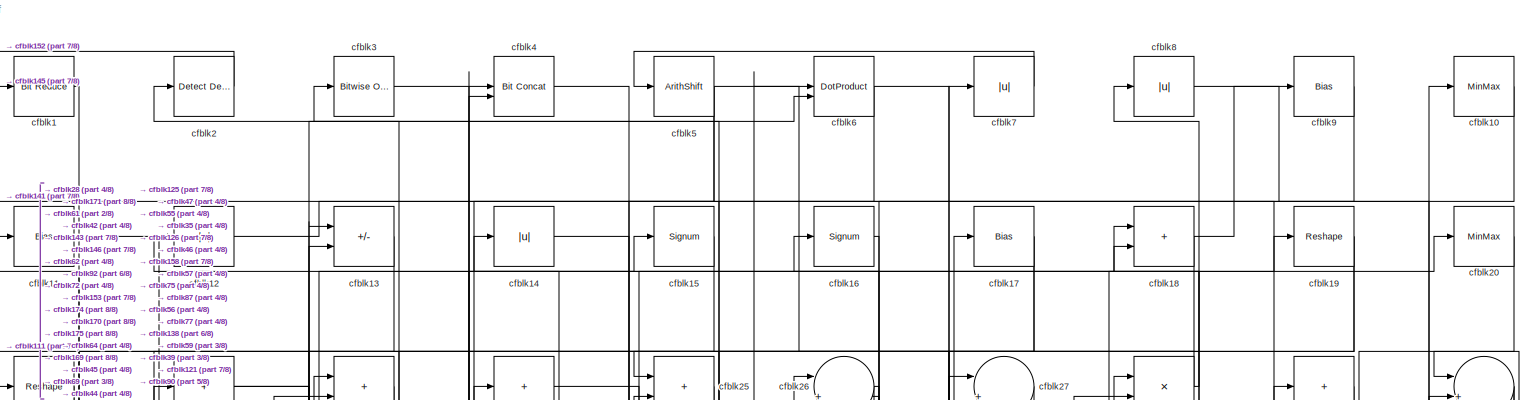
[diagram: root canvas - part 1/8, full width, top band]
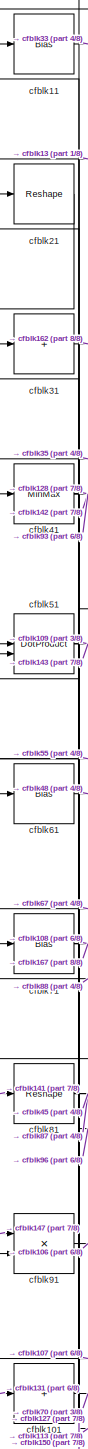
[diagram: root canvas - part 2/8, middle left region]
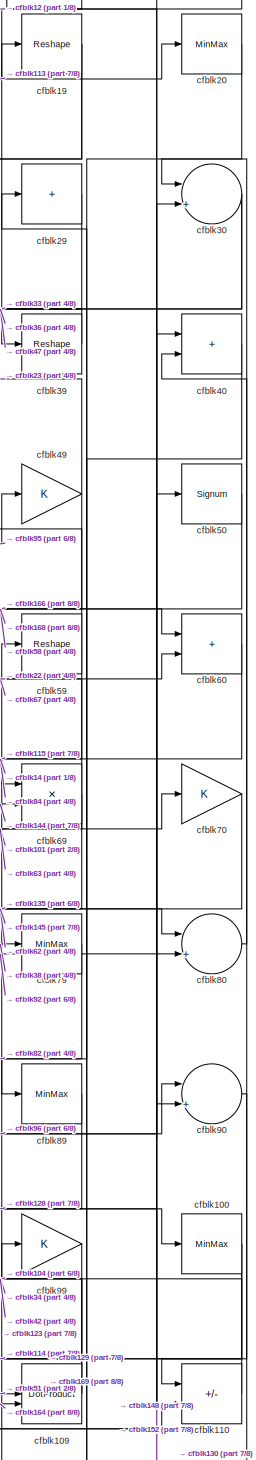
[diagram: root canvas - part 3/8, middle right region]
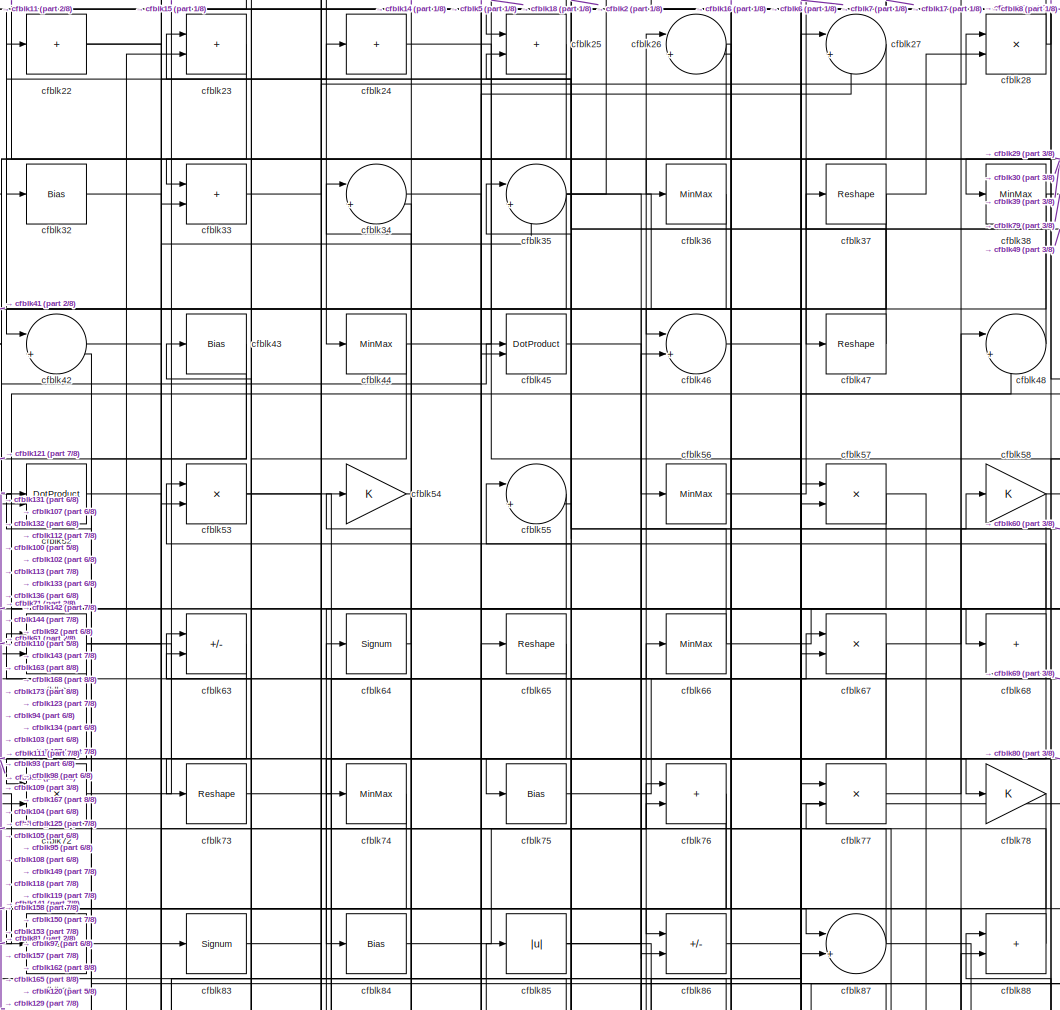
[diagram: root canvas - part 4/8, top center region]
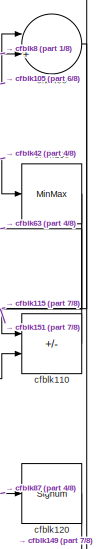
[diagram: root canvas - part 5/8, middle right region]
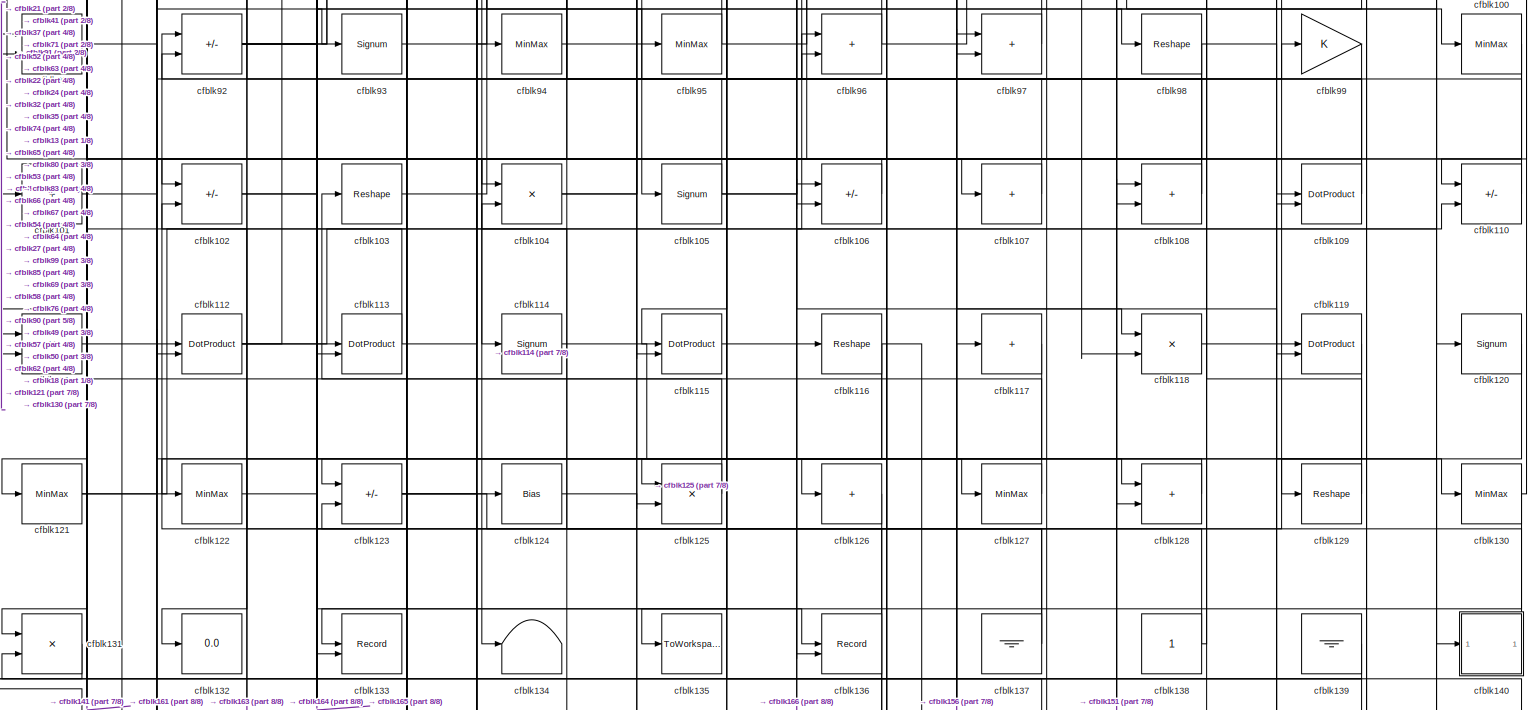
[diagram: root canvas - part 6/8, full width, middle band]
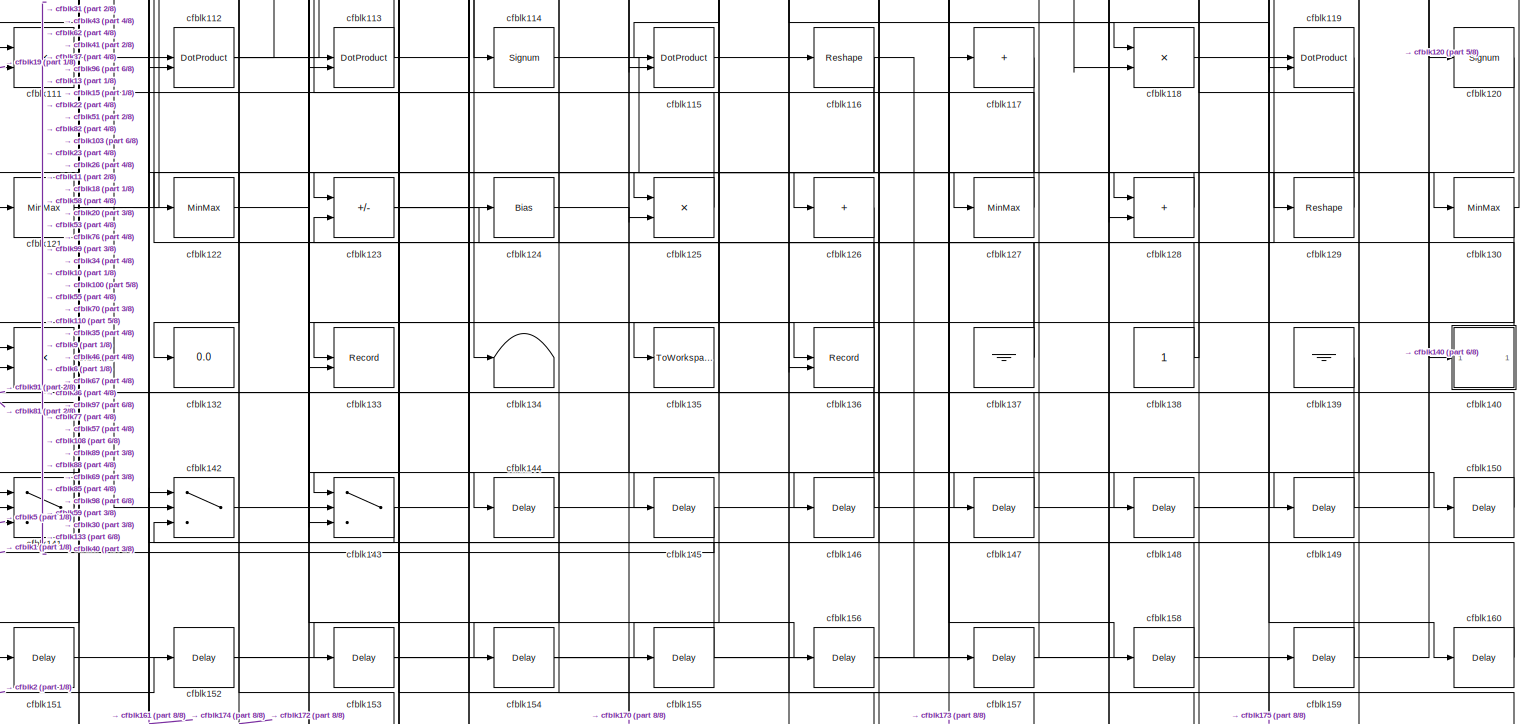
[diagram: root canvas - part 7/8, full width, bottom band]
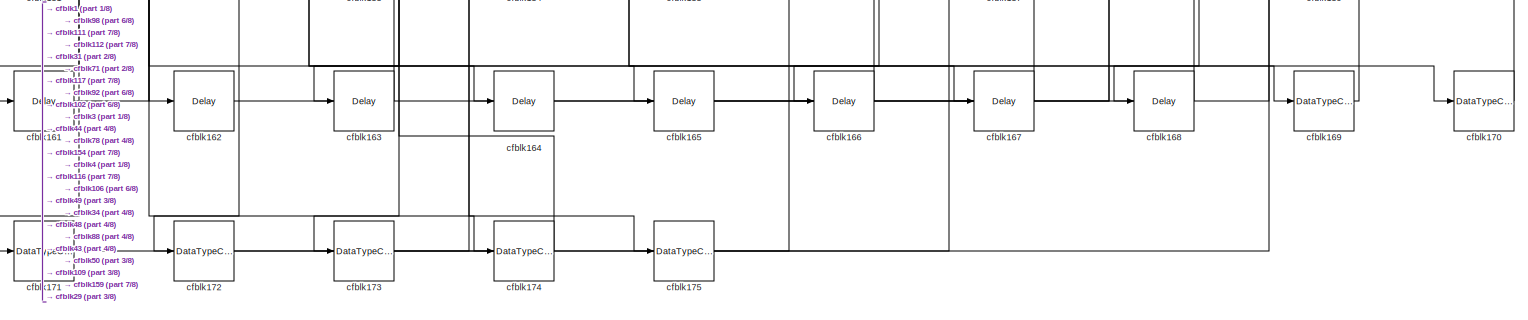
[diagram: root canvas - part 8/8, full width, bottom band]
MODEL slx_5d23d89e53ff
KIND model
CONFIG AbsTol = auto
CONFIG EnableMultiTasking = off
CONFIG FixedStep = auto
CONFIG MaxStep = auto
CONFIG MinStep = auto
CONFIG RelTol = 1e-3
CONFIG SampleTimeConstraint = Unconstrained
CONFIG SolverName = VariableStepAuto
CONFIG StartTime = 0.0
CONFIG StopTime = 10.0
BLOCK [Reference] cfblk1  REF=hdlsllib/Logic and Bit
Operations/Bit Reduce
  SourceBlock = hdlsllib/Logic and Bit\nOperations/Bit Reduce
  SourceType = Bit Reduce
BLOCK [MinMax] cfblk10
BLOCK [MinMax] cfblk100
BLOCK [Sum] cfblk101
  IconShape = rectangular
  Inputs = +
BLOCK [Sum] cfblk102
  IconShape = rectangular
  Inputs = +-
BLOCK [Reshape] cfblk103
BLOCK [Product] cfblk104
  Inputs = */
  RndMeth = Zero
  SaturateOnIntegerOverflow = on
BLOCK [Signum] cfblk105
BLOCK [Sum] cfblk106
  IconShape = rectangular
  Inputs = +-
BLOCK [Sum] cfblk107
  IconShape = rectangular
  Inputs = +
BLOCK [Sum] cfblk108
  IconShape = rectangular
BLOCK [DotProduct] cfblk109
  OutDataTypeStr = Inherit: Inherit via internal rule
BLOCK [Bias] cfblk11
  Bias = 0.0
  SaturateOnIntegerOverflow = off
BLOCK [Sum] cfblk110
  IconShape = rectangular
  Inputs = +-
BLOCK [Product] cfblk111
  Inputs = */
  RndMeth = Zero
  SaturateOnIntegerOverflow = on
BLOCK [DotProduct] cfblk112
  OutDataTypeStr = Inherit: Inherit via internal rule
BLOCK [DotProduct] cfblk113
  OutDataTypeStr = Inherit: Inherit via internal rule
BLOCK [Signum] cfblk114
BLOCK [DotProduct] cfblk115
  OutDataTypeStr = Inherit: Inherit via internal rule
BLOCK [Reshape] cfblk116
BLOCK [Sum] cfblk117
  IconShape = rectangular
  Inputs = +
BLOCK [Product] cfblk118
  Inputs = */
  RndMeth = Zero
  SaturateOnIntegerOverflow = on
BLOCK [DotProduct] cfblk119
  OutDataTypeStr = Inherit: Inherit via internal rule
BLOCK [Abs] cfblk12
  SaturateOnIntegerOverflow = off
BLOCK [Signum] cfblk120
BLOCK [MinMax] cfblk121
BLOCK [MinMax] cfblk122
BLOCK [Sum] cfblk123
  IconShape = rectangular
  Inputs = +-
BLOCK [Bias] cfblk124
  Bias = 0.0
  SaturateOnIntegerOverflow = off
BLOCK [Product] cfblk125
  Inputs = */
  RndMeth = Zero
  SaturateOnIntegerOverflow = on
BLOCK [Sum] cfblk126
  IconShape = rectangular
  Inputs = +
BLOCK [MinMax] cfblk127
BLOCK [Sum] cfblk128
  IconShape = rectangular
BLOCK [Reshape] cfblk129
BLOCK [Sum] cfblk13
  IconShape = rectangular
  Inputs = +-
BLOCK [MinMax] cfblk130
BLOCK [Product] cfblk131
  Inputs = */
  RndMeth = Zero
  SaturateOnIntegerOverflow = on
BLOCK [Display] cfblk132
  Decimation = 1
BLOCK [Record] cfblk133
  CompatibilityTag = XY
  FileSettingsInternal = {"entries":[{"content":{"excelSettings":{"content":{},"type":"Streamout.ExcelSettings"}},"type":"Streamout.FileSettingStorage","uuid":""}],"packageUris":["http:\/\/schema.mathworks.com\/mf0\/streamout_blocks\/R2020a"],"version":"1.0"}
  Layout = [1 1]
  SignalsInternal = {"entries":[{"content":{"signals":[{"content":{"blockPath":[],"dimensions":[1],"domain":"","lineColor":"#a2142f","plots":[1],"port":1,"signalID":6494,"signalName":"XY Graph:1"},"type":"RecordBlkView.Signal","uuid":""},{"content":{"blockPath":[],"dimensions":[1],"domain":"","lineColor":"#139fff","plots":[1],"port":2,"signalID":6497,"signalName":"XY Graph:2"},"type":"RecordBlkView.Signal","uuid":""}...<+146ch>
  VisualizationBindings = {"xyplotplugin":{"info":[{"series":[{"bindingParametersList":[{"parameter":"X-Axis","signalID":6494,"signalName":"XY Graph:1"},{"parameter":"Y-Axis","signalID":6497,"signalName":"XY Graph:2"}],"seriesID":26703}],"subplotID":1}]}}
  st = -1
BLOCK [Terminator] cfblk134
BLOCK [ToWorkspace] cfblk135
  MaxDataPoints = inf
  SampleTime = -1
  SaveFormat = Timeseries
  VariableName = simout
BLOCK [Record] cfblk136
  CompatibilityTag = XY
  FileSettingsInternal = {"entries":[{"content":{"excelSettings":{"content":{},"type":"Streamout.ExcelSettings"}},"type":"Streamout.FileSettingStorage","uuid":""}],"packageUris":["http:\/\/schema.mathworks.com\/mf0\/streamout_blocks\/R2020a"],"version":"1.0"}
  Layout = [1 1]
  SignalsInternal = {"entries":[{"content":{"signals":[{"content":{"blockPath":[],"dimensions":[1],"domain":"","lineColor":"#a2142f","plots":[1],"port":1,"signalID":6502,"signalName":"XY Graph:1"},"type":"RecordBlkView.Signal","uuid":""},{"content":{"blockPath":[],"dimensions":[1],"domain":"","lineColor":"#139fff","plots":[1],"port":2,"signalID":6505,"signalName":"XY Graph:2"},"type":"RecordBlkView.Signal","uuid":""}...<+146ch>
  VisualizationBindings = {"xyplotplugin":{"info":[{"series":[{"bindingParametersList":[{"parameter":"X-Axis","signalID":6502,"signalName":"XY Graph:1"},{"parameter":"Y-Axis","signalID":6505,"signalName":"XY Graph:2"}],"seriesID":43252}],"subplotID":1}]}}
  st = -1
BLOCK [Ground] cfblk137
BLOCK [Constant] cfblk138
  SampleTime = -1
BLOCK [Ground] cfblk139
BLOCK [Abs] cfblk14
  SaturateOnIntegerOverflow = off
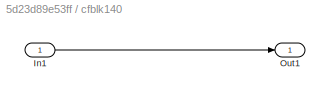
BLOCK [SubSystem] cfblk140
  LibrarySourceBlock = hdlsllib/Ports &\nSubsystems/Subsystem
BLOCK [Inport] cfblk140/In1
BLOCK [Outport] cfblk140/Out1
BLOCK [Switch] cfblk141
  InputSameDT = off
  SaturateOnIntegerOverflow = off
BLOCK [Switch] cfblk142
  InputSameDT = off
  SaturateOnIntegerOverflow = off
BLOCK [Switch] cfblk143
  InputSameDT = off
  SaturateOnIntegerOverflow = off
BLOCK [Delay] cfblk144
  InputPortMap = u0
  SampleTime = 1
BLOCK [Delay] cfblk145
  InputPortMap = u0
  SampleTime = 1
BLOCK [Delay] cfblk146
  InputPortMap = u0
  SampleTime = 1
BLOCK [Delay] cfblk147
  InputPortMap = u0
  SampleTime = 1
BLOCK [Delay] cfblk148
  InputPortMap = u0
  SampleTime = 1
BLOCK [Delay] cfblk149
  InputPortMap = u0
  SampleTime = 1
BLOCK [Signum] cfblk15
BLOCK [Delay] cfblk150
  InputPortMap = u0
  SampleTime = 1
BLOCK [Delay] cfblk151
  InputPortMap = u0
  SampleTime = 1
BLOCK [Delay] cfblk152
  InputPortMap = u0
  SampleTime = 1
BLOCK [Delay] cfblk153
  InputPortMap = u0
  SampleTime = 1
BLOCK [Delay] cfblk154
  InputPortMap = u0
  SampleTime = 1
BLOCK [Delay] cfblk155
  InputPortMap = u0
  SampleTime = 1
BLOCK [Delay] cfblk156
  InputPortMap = u0
  SampleTime = 1
BLOCK [Delay] cfblk157
  InputPortMap = u0
  SampleTime = 1
BLOCK [Delay] cfblk158
  InputPortMap = u0
  SampleTime = 1
BLOCK [Delay] cfblk159
  InputPortMap = u0
  SampleTime = 1
BLOCK [Signum] cfblk16
BLOCK [Delay] cfblk160
  InputPortMap = u0
  SampleTime = 1
BLOCK [Delay] cfblk161
  InputPortMap = u0
  SampleTime = 1
BLOCK [Delay] cfblk162
  InputPortMap = u0
  SampleTime = 1
BLOCK [Delay] cfblk163
  InputPortMap = u0
  SampleTime = 1
BLOCK [Delay] cfblk164
  InputPortMap = u0
  SampleTime = 1
BLOCK [Delay] cfblk165
  InputPortMap = u0
  SampleTime = 1
BLOCK [Delay] cfblk166
  InputPortMap = u0
  SampleTime = 1
BLOCK [Delay] cfblk167
  InputPortMap = u0
  SampleTime = 1
BLOCK [Delay] cfblk168
  InputPortMap = u0
  SampleTime = 1
BLOCK [DataTypeConversion] cfblk169
  OutDataTypeStr = uint8
  RndMeth = Floor
  SaturateOnIntegerOverflow = off
BLOCK [Bias] cfblk17
  Bias = 0.0
  SaturateOnIntegerOverflow = off
BLOCK [DataTypeConversion] cfblk170
  OutDataTypeStr = uint8
  RndMeth = Floor
  SaturateOnIntegerOverflow = off
BLOCK [DataTypeConversion] cfblk171
  OutDataTypeStr = uint8
  RndMeth = Floor
  SaturateOnIntegerOverflow = off
BLOCK [DataTypeConversion] cfblk172
  OutDataTypeStr = uint8
  RndMeth = Floor
  SaturateOnIntegerOverflow = off
BLOCK [DataTypeConversion] cfblk173
  OutDataTypeStr = uint8
  RndMeth = Floor
  SaturateOnIntegerOverflow = off
BLOCK [DataTypeConversion] cfblk174
  OutDataTypeStr = boolean
  RndMeth = Floor
  SaturateOnIntegerOverflow = off
BLOCK [DataTypeConversion] cfblk175
  OutDataTypeStr = uint8
  RndMeth = Floor
  SaturateOnIntegerOverflow = off
BLOCK [Sum] cfblk18
  IconShape = rectangular
BLOCK [Reshape] cfblk19
BLOCK [Reference] cfblk2  REF=simulink/Logic and Bit
Operations/Detect
Decrease
  LibrarySourceBlock = hdlsllib/Logic and Bit\nOperations/Detect\nDecrease
  SourceBlock = simulink/Logic and Bit\nOperations/Detect\nDecrease
  SourceType = Detect Decrease
BLOCK [MinMax] cfblk20
BLOCK [Reshape] cfblk21
BLOCK [Sum] cfblk22
  IconShape = rectangular
  Inputs = +
BLOCK [Sum] cfblk23
  IconShape = rectangular
BLOCK [Sum] cfblk24
  IconShape = rectangular
  Inputs = +
BLOCK [Sum] cfblk25
  IconShape = rectangular
BLOCK [Sum] cfblk26
  Inputs = |++
BLOCK [Sum] cfblk27
  Inputs = |++
BLOCK [Product] cfblk28
  Inputs = */
  RndMeth = Zero
  SaturateOnIntegerOverflow = on
BLOCK [Sum] cfblk29
  IconShape = rectangular
  Inputs = +
BLOCK [Reference] cfblk3  REF=simulink/Logic and Bit
Operations/Bitwise
Operator
  LibrarySourceBlock = hdlsllib/Logic and Bit\nOperations/Bitwise\nOperator
  SourceBlock = simulink/Logic and Bit\nOperations/Bitwise\nOperator
  SourceType = Bitwise Operator
BLOCK [Sum] cfblk30
  Inputs = |++
BLOCK [Sum] cfblk31
  IconShape = rectangular
  Inputs = +
BLOCK [Bias] cfblk32
  Bias = 0.0
  SaturateOnIntegerOverflow = off
BLOCK [Sum] cfblk33
  IconShape = rectangular
BLOCK [Sum] cfblk34
  Inputs = |++
BLOCK [Sum] cfblk35
  Inputs = |++
BLOCK [MinMax] cfblk36
BLOCK [Reshape] cfblk37
BLOCK [MinMax] cfblk38
BLOCK [Reshape] cfblk39
BLOCK [Reference] cfblk4  REF=hdlsllib/Logic and Bit
Operations/Bit Concat
  SourceBlock = hdlsllib/Logic and Bit\nOperations/Bit Concat
  SourceType = Bit Concat
BLOCK [Sum] cfblk40
  IconShape = rectangular
BLOCK [MinMax] cfblk41
BLOCK [Sum] cfblk42
  Inputs = |++
BLOCK [Bias] cfblk43
  Bias = 0.0
  SaturateOnIntegerOverflow = off
BLOCK [MinMax] cfblk44
BLOCK [DotProduct] cfblk45
  OutDataTypeStr = Inherit: Inherit via internal rule
BLOCK [Sum] cfblk46
  Inputs = |++
BLOCK [Reshape] cfblk47
BLOCK [Sum] cfblk48
  Inputs = |++
BLOCK [Gain] cfblk49
BLOCK [ArithShift] cfblk5
  BitShiftNumber = 8
  InputPortMap = u0
BLOCK [Signum] cfblk50
BLOCK [DotProduct] cfblk51
  OutDataTypeStr = Inherit: Inherit via internal rule
BLOCK [DotProduct] cfblk52
  OutDataTypeStr = Inherit: Inherit via internal rule
BLOCK [Product] cfblk53
  Inputs = */
  RndMeth = Zero
  SaturateOnIntegerOverflow = on
BLOCK [Gain] cfblk54
BLOCK [Sum] cfblk55
  Inputs = |++
BLOCK [MinMax] cfblk56
BLOCK [Product] cfblk57
  Inputs = */
  RndMeth = Zero
  SaturateOnIntegerOverflow = on
BLOCK [Gain] cfblk58
BLOCK [Reshape] cfblk59
BLOCK [DotProduct] cfblk6
  OutDataTypeStr = Inherit: Inherit via internal rule
BLOCK [Sum] cfblk60
  IconShape = rectangular
BLOCK [Bias] cfblk61
  Bias = 0.0
  SaturateOnIntegerOverflow = off
BLOCK [Sum] cfblk62
  IconShape = rectangular
BLOCK [Sum] cfblk63
  IconShape = rectangular
  Inputs = +-
BLOCK [Signum] cfblk64
BLOCK [Reshape] cfblk65
BLOCK [MinMax] cfblk66
BLOCK [Product] cfblk67
  Inputs = */
  RndMeth = Zero
  SaturateOnIntegerOverflow = on
BLOCK [Sum] cfblk68
  IconShape = rectangular
  Inputs = +
BLOCK [Product] cfblk69
  Inputs = */
  RndMeth = Zero
  SaturateOnIntegerOverflow = on
BLOCK [Abs] cfblk7
  SaturateOnIntegerOverflow = off
BLOCK [Gain] cfblk70
BLOCK [Bias] cfblk71
  Bias = 0.0
  SaturateOnIntegerOverflow = off
BLOCK [Product] cfblk72
  Inputs = */
  RndMeth = Zero
  SaturateOnIntegerOverflow = on
BLOCK [Reshape] cfblk73
BLOCK [MinMax] cfblk74
BLOCK [Bias] cfblk75
  Bias = 0.0
  SaturateOnIntegerOverflow = off
BLOCK [Sum] cfblk76
  IconShape = rectangular
BLOCK [Product] cfblk77
  Inputs = */
  RndMeth = Zero
  SaturateOnIntegerOverflow = on
BLOCK [Gain] cfblk78
BLOCK [MinMax] cfblk79
BLOCK [Abs] cfblk8
  SaturateOnIntegerOverflow = off
BLOCK [Sum] cfblk80
  Inputs = |++
BLOCK [Reshape] cfblk81
BLOCK [Bias] cfblk82
  Bias = 0.0
  SaturateOnIntegerOverflow = off
BLOCK [Signum] cfblk83
BLOCK [Bias] cfblk84
  Bias = 0.0
  SaturateOnIntegerOverflow = off
BLOCK [Abs] cfblk85
  SaturateOnIntegerOverflow = off
BLOCK [Sum] cfblk86
  IconShape = rectangular
  Inputs = +-
BLOCK [Sum] cfblk87
  Inputs = |++
BLOCK [Sum] cfblk88
  IconShape = rectangular
BLOCK [MinMax] cfblk89
BLOCK [Bias] cfblk9
  Bias = 0.0
  SaturateOnIntegerOverflow = off
BLOCK [Sum] cfblk90
  Inputs = |++
BLOCK [Product] cfblk91
  Inputs = */
  RndMeth = Zero
  SaturateOnIntegerOverflow = on
BLOCK [Sum] cfblk92
  IconShape = rectangular
  Inputs = +-
BLOCK [Signum] cfblk93
BLOCK [MinMax] cfblk94
BLOCK [MinMax] cfblk95
BLOCK [Sum] cfblk96
  IconShape = rectangular
BLOCK [Sum] cfblk97
  IconShape = rectangular
BLOCK [Reshape] cfblk98
BLOCK [Gain] cfblk99
NET cfblk100:1 -> cfblk115:1, cfblk151:1
LINE cfblk101:1 -> cfblk70:1
NET cfblk102:1 -> cfblk24:1, cfblk35:2
LINE cfblk103:1 -> cfblk67:1
NET cfblk104:1 -> cfblk27:2, cfblk99:1
NET cfblk105:1 -> cfblk58:1, cfblk85:1, cfblk90:1
LINE cfblk106:1 -> cfblk102:1
LINE cfblk107:1 -> cfblk52:1
NET cfblk108:1 -> cfblk35:1, cfblk64:1
NET cfblk109:1 -> cfblk34:1, cfblk42:2
LINE cfblk10:1 -> cfblk125:1
LINE cfblk110:1 -> cfblk63:1
LINE cfblk111:1 -> cfblk174:1
NET cfblk112:1 -> cfblk23:2, cfblk26:1, cfblk76:1
NET cfblk113:1 -> cfblk11:1, cfblk20:1
LINE cfblk114:1 -> cfblk140:1
LINE cfblk115:1 -> cfblk110:2
NET cfblk116:1 -> cfblk122:1, cfblk155:1, cfblk157:1
LINE cfblk117:1 -> cfblk172:1
LINE cfblk118:1 -> cfblk160:1
LINE cfblk119:1 -> cfblk146:1
LINE cfblk11:1 -> cfblk33:2
LINE cfblk120:1 -> cfblk149:1
NET cfblk121:1 -> cfblk10:1, cfblk96:1
LINE cfblk122:1 -> cfblk156:1
NET cfblk123:1 -> cfblk148:1, cfblk59:1, cfblk76:2
LINE cfblk124:1 -> cfblk147:1
LINE cfblk125:1 -> cfblk103:1
LINE cfblk126:1 -> cfblk154:1
LINE cfblk127:1 -> cfblk31:1
LINE cfblk128:1 -> cfblk123:1
LINE cfblk129:1 -> cfblk88:1
LINE cfblk12:1 -> cfblk39:1
NET cfblk130:1 -> cfblk133:1, cfblk40:2
LINE cfblk131:1 -> cfblk101:1
NET cfblk137:1 -> cfblk104:2, cfblk92:1
NET cfblk138:1 -> cfblk18:2, cfblk96:2
LINE cfblk139:1 -> cfblk131:2
LINE cfblk13:1 -> cfblk61:1
LINE cfblk140/In1:1 -> cfblk140/Out1:1
LINE cfblk140:1 -> cfblk92:2
LINE cfblk141:1 -> cfblk81:1
LINE cfblk142:1 -> cfblk53:2
NET cfblk143:1 -> cfblk124:1, cfblk142:3
LINE cfblk144:1 -> cfblk69:2
LINE cfblk145:1 -> cfblk1:1
LINE cfblk146:1 -> cfblk13:1
LINE cfblk147:1 -> cfblk91:1
LINE cfblk148:1 -> cfblk40:1
LINE cfblk149:1 -> cfblk55:1
LINE cfblk14:1 -> cfblk69:1
LINE cfblk150:1 -> cfblk51:2
LINE cfblk151:1 -> cfblk108:1
LINE cfblk152:1 -> cfblk30:2
LINE cfblk153:1 -> cfblk67:2
LINE cfblk154:1 -> cfblk170:1
LINE cfblk155:1 -> cfblk113:1
LINE cfblk156:1 -> cfblk97:1
LINE cfblk157:1 -> cfblk77:2
LINE cfblk158:1 -> cfblk26:2
LINE cfblk159:1 -> cfblk142:1
LINE cfblk15:1 -> cfblk143:2
LINE cfblk160:1 -> cfblk123:2
LINE cfblk161:1 -> cfblk112:1
LINE cfblk162:1 -> cfblk48:1
LINE cfblk163:1 -> cfblk102:2
LINE cfblk164:1 -> cfblk109:2
LINE cfblk165:1 -> cfblk88:2
LINE cfblk166:1 -> cfblk106:1
LINE cfblk167:1 -> cfblk34:2
LINE cfblk168:1 -> cfblk43:1
LINE cfblk169:1 -> cfblk29:1
LINE cfblk16:1 -> cfblk46:1
LINE cfblk170:1 -> cfblk4:1
LINE cfblk171:1 -> cfblk4:2
LINE cfblk172:1 -> cfblk116:1
LINE cfblk173:1 -> cfblk117:1
LINE cfblk174:1 -> cfblk3:1
LINE cfblk175:1 -> cfblk159:1
NET cfblk17:1 -> cfblk42:1, cfblk57:2
NET cfblk18:1 -> cfblk153:1, cfblk9:1
NET cfblk19:1 -> cfblk111:2, cfblk55:2
LINE cfblk1:1 -> cfblk171:1
LINE cfblk20:1 -> cfblk129:1
LINE cfblk21:1 -> cfblk107:1
NET cfblk22:1 -> cfblk144:1, cfblk95:1
LINE cfblk23:1 -> cfblk62:2
LINE cfblk24:1 -> cfblk77:1
LINE cfblk25:1 -> cfblk32:1
NET cfblk26:1 -> cfblk52:2, cfblk86:1
LINE cfblk27:1 -> cfblk73:1
NET cfblk28:1 -> cfblk25:1, cfblk8:1
LINE cfblk29:1 -> cfblk38:1
LINE cfblk2:1 -> cfblk152:1
NET cfblk30:1 -> cfblk36:1, cfblk47:1
LINE cfblk31:1 -> cfblk162:1
LINE cfblk32:1 -> cfblk136:1
LINE cfblk33:1 -> cfblk28:1
LINE cfblk34:1 -> cfblk125:2
NET cfblk35:1 -> cfblk118:1, cfblk41:1, cfblk57:1, cfblk6:1
LINE cfblk36:1 -> cfblk86:2
NET cfblk37:1 -> cfblk112:2, cfblk131:1, cfblk28:2
NET cfblk38:1 -> cfblk72:2, cfblk79:1
LINE cfblk39:1 -> cfblk33:1
LINE cfblk3:1 -> cfblk175:1
LINE cfblk40:1 -> cfblk89:1
NET cfblk41:1 -> cfblk128:1, cfblk142:2, cfblk93:1
LINE cfblk42:1 -> cfblk100:1
NET cfblk43:1 -> cfblk121:1, cfblk72:1
NET cfblk44:1 -> cfblk173:1, cfblk18:1
LINE cfblk45:1 -> cfblk56:1
LINE cfblk46:1 -> cfblk150:1
LINE cfblk47:1 -> cfblk2:1
LINE cfblk48:1 -> cfblk37:1
NET cfblk49:1 -> cfblk166:1, cfblk23:1
LINE cfblk4:1 -> cfblk169:1
LINE cfblk50:1 -> cfblk168:1
NET cfblk51:1 -> cfblk109:1, cfblk143:3
LINE cfblk52:1 -> cfblk83:1
NET cfblk53:1 -> cfblk127:1, cfblk98:1
LINE cfblk54:1 -> cfblk104:1
LINE cfblk55:1 -> cfblk71:1
LINE cfblk56:1 -> cfblk17:1
NET cfblk57:1 -> cfblk118:2, cfblk97:2
NET cfblk58:1 -> cfblk143:1, cfblk60:1
NET cfblk59:1 -> cfblk115:2, cfblk12:1
NET cfblk5:1 -> cfblk141:3, cfblk45:2, cfblk87:2
LINE cfblk60:1 -> cfblk84:1
LINE cfblk61:1 -> cfblk48:2
NET cfblk62:1 -> cfblk111:1, cfblk6:2, cfblk80:1
LINE cfblk63:1 -> cfblk132:1
LINE cfblk64:1 -> cfblk14:1
LINE cfblk65:1 -> cfblk75:1
NET cfblk66:1 -> cfblk25:2, cfblk68:1
NET cfblk67:1 -> cfblk134:1, cfblk60:2, cfblk91:2
NET cfblk68:1 -> cfblk53:1, cfblk74:1
NET cfblk69:1 -> cfblk135:1, cfblk22:1, cfblk63:2
NET cfblk6:1 -> cfblk158:1, cfblk44:1
LINE cfblk70:1 -> cfblk145:1
NET cfblk71:1 -> cfblk108:2, cfblk167:1
LINE cfblk72:1 -> cfblk15:1
LINE cfblk73:1 -> cfblk78:1
LINE cfblk74:1 -> cfblk133:2
LINE cfblk75:1 -> cfblk7:1
NET cfblk76:1 -> cfblk136:2, cfblk141:2
LINE cfblk77:1 -> cfblk19:1
LINE cfblk78:1 -> cfblk163:1
LINE cfblk79:1 -> cfblk82:1
LINE cfblk7:1 -> cfblk5:1
LINE cfblk80:1 -> cfblk30:1
NET cfblk81:1 -> cfblk45:1, cfblk87:1
LINE cfblk82:1 -> cfblk113:2
LINE cfblk83:1 -> cfblk94:1
LINE cfblk84:1 -> cfblk27:1
NET cfblk85:1 -> cfblk119:1, cfblk46:2
LINE cfblk86:1 -> cfblk119:2
NET cfblk87:1 -> cfblk120:1, cfblk16:1
LINE cfblk88:1 -> cfblk51:1
LINE cfblk89:1 -> cfblk128:2
LINE cfblk8:1 -> cfblk90:2
LINE cfblk90:1 -> cfblk110:1
LINE cfblk91:1 -> cfblk106:2
NET cfblk92:1 -> cfblk13:2, cfblk164:1, cfblk165:1, cfblk65:1, cfblk80:2
LINE cfblk93:1 -> cfblk66:1
LINE cfblk94:1 -> cfblk105:1
NET cfblk95:1 -> cfblk49:1, cfblk54:1
NET cfblk96:1 -> cfblk21:1, cfblk50:1
LINE cfblk97:1 -> cfblk62:1
NET cfblk98:1 -> cfblk130:1, cfblk141:1, cfblk161:1
LINE cfblk99:1 -> cfblk114:1
LINE cfblk9:1 -> cfblk126:1
note: NET lines group one-source signal fan-out (src -> all destinations, sorted); 1:1 wires keep LINE
